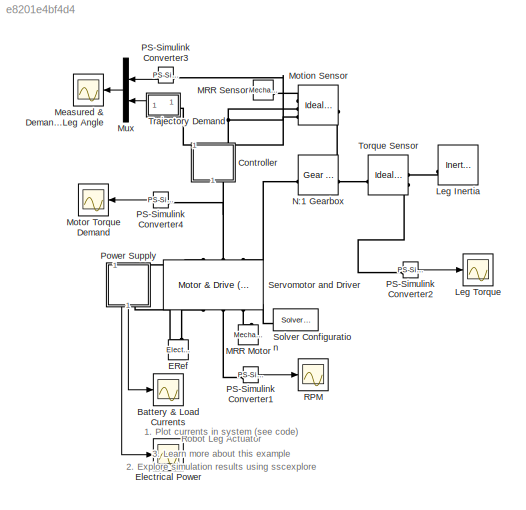
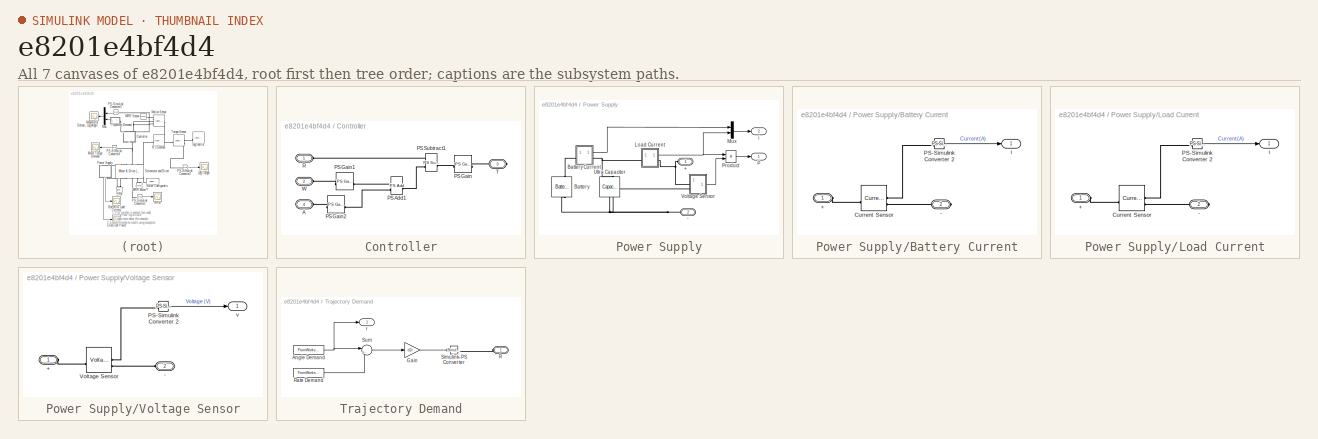
[diagram: thumbnail index - all 7 canvases of the model, root first then tree order]
MODEL slx_e8201e4bf4d4
KIND model
CONFIG EnableMultiTasking = on
CONFIG InitFcn = d2r = pi/180;\nif (~exist('T_cg'))\n  sm_robot_run_4legs_param_def_load(bdroot)\nend
CONFIG MaxStep = 1e-2
CONFIG SolverName = ode15s
CONFIG StopTime = 6*T_cg/4
BLOCK [Scope] Battery & Load Currents
  ActiveDisplayYMaximum = 1.5
  ActiveDisplayYMinimum = -1
  DataLogging = on
  DataLoggingDecimateData = on
  DataLoggingDecimation = 1
  DataLoggingSaveFormat = Structure With Time
  DataLoggingVariableName = battery
  Floating = off
  GraphicalSettings = {"GraphicalSettings":{"LegacySettings":true,"Style":{"AxesScalingProperties":{"ScaleAxesLimitsAtStop":false},"Style":{"AxesColor":"[0 0 0]","ChannelNames":[""],"ColorOrder":"[1 1 0.0666666666666667;0.0745098039215686 0.623529411764706 1;1 0.411764705882353 0.16078431372549;0.392156862745098 0.831372549019608 0.0745098039215686;0.717647058823529 0.274509803921569 1;0.0588235294117647 1 1;1 0.074509...<+399ch>  <repeated x5 — deduplicated; at blocks: Battery & Load Currents, Electrical Power, Measured & Demanded Leg Angle, Motor Torque Demand, RPM>
  MultipleDisplayCache = [{"MaxYLimMag":10,"MaxYLimReal":1.5,"MinYLimMag":0,"MinYLimReal":-1,"PlotAsMagnitudePhase":false,"ShowGrid":true,"ShowLegend":false,"Title":"%<SignalLabel>","YLabel":""}]
  NumInputPorts = 1
  WasSavedAsWebScope = on
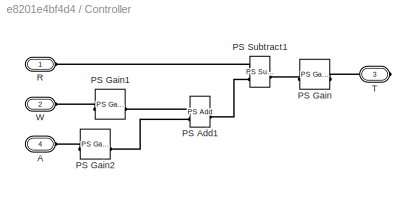
BLOCK [SubSystem] Controller
  NameLocation = left
BLOCK [PMIOPort] Controller/A
  Port = 4
  Side = Left
BLOCK [Reference] Controller/PS Add1  REF=fl_lib/Physical Signals/Functions/PS Add
  SourceBlock = fl_lib/Physical Signals/Functions/PS Add
  SourceType = PS Add
BLOCK [Reference] Controller/PS Gain  REF=fl_lib/Physical Signals/Functions/PS Gain
  SourceBlock = fl_lib/Physical Signals/Functions/PS Gain
  SourceType = PS Gain
BLOCK [Reference] Controller/PS Gain1  REF=fl_lib/Physical Signals/Functions/PS Gain
  SourceBlock = fl_lib/Physical Signals/Functions/PS Gain
  SourceType = PS Gain
BLOCK [Reference] Controller/PS Gain2  REF=fl_lib/Physical Signals/Functions/PS Gain
  SourceBlock = fl_lib/Physical Signals/Functions/PS Gain
  SourceType = PS Gain
BLOCK [Reference] Controller/PS Subtract1  REF=fl_lib/Physical Signals/Functions/PS Subtract
  SourceBlock = fl_lib/Physical Signals/Functions/PS Subtract
  SourceType = PS Subtract
BLOCK [PMIOPort] Controller/R
  Side = Left
BLOCK [PMIOPort] Controller/T
  Port = 3
  Side = Right
BLOCK [PMIOPort] Controller/W
  Port = 2
  Side = Left
BLOCK [Reference] ERef  REF=fl_lib/Electrical/Electrical Elements/Electrical Reference
  NameLocation = left
  SourceBlock = fl_lib/Electrical/Electrical Elements/Electrical Reference
  SourceType = Electrical Reference
BLOCK [Scope] Electrical Power
  ActiveDisplayYMaximum = 30
  ActiveDisplayYMinimum = -20
  DataLoggingDecimateData = on
  DataLoggingDecimation = 1
  DataLoggingSaveFormat = Structure With Time
  DataLoggingVariableName = ScopeData4
  Floating = off
  MultipleDisplayCache = [{"MaxYLimMag":10,"MaxYLimReal":30,"MinYLimMag":0,"MinYLimReal":-20,"PlotAsMagnitudePhase":false,"ShowGrid":true,"ShowLegend":false,"Title":"%<SignalLabel>","YLabel":""}]
  NumInputPorts = 1
  WasSavedAsWebScope = on
  WindowPosition = [546 541 324 237]
BLOCK [Reference] Leg Inertia  REF=fl_lib/Mechanical/Rotational Elements/Inertia
  SourceBlock = fl_lib/Mechanical/Rotational Elements/Inertia
  SourceType = Inertia
BLOCK [Scope] Leg Torque
  DataLoggingDecimateData = on
  DataLoggingDecimation = 1
  DataLoggingSaveFormat = Structure With Time
  DataLoggingVariableName = ScopeData2
  Floating = off
  GraphicalSettings = {"GraphicalSettings":{"LegacySettings":true,"Style":{"AxesScalingProperties":{"ScaleAxesLimitsAtStop":false},"Style":{"AxesColor":"[0 0 0]","ChannelNames":[""],"ColorOrder":"[1 0.909803921568627 0.392156862745098;0.149019607843137 0.549019607843137 0.866666666666667;0.96078431372549 0.466666666666667 0.16078431372549;0.286274509803922 0.858823529411765 0.250980392156863;0.752941176470588 0.3607843...<+488ch>
  NumInputPorts = 1
  TimeSpan = 1.4
  WasSavedAsWebScope = on
BLOCK [Reference] MRR Motor  REF=fl_lib/Mechanical/Rotational Elements/Mechanical
Rotational Reference
  NameLocation = right
  SourceBlock = fl_lib/Mechanical/Rotational Elements/Mechanical\nRotational Reference
  SourceType = Mechanical\nRotational Reference
BLOCK [Reference] MRR Sensor  REF=fl_lib/Mechanical/Rotational Elements/Mechanical
Rotational Reference
  SourceBlock = fl_lib/Mechanical/Rotational Elements/Mechanical\nRotational Reference
  SourceType = Mechanical\nRotational Reference
BLOCK [Scope] Measured & Demanded Leg Angle
  ActiveDisplayYMaximum = 80
  ActiveDisplayYMinimum = -20
  DataLoggingDecimateData = on
  DataLoggingDecimation = 1
  DataLoggingSaveFormat = Structure With Time
  Floating = off
  MultipleDisplayCache = [{"MaxYLimMag":10,"MaxYLimReal":80,"MinYLimMag":0,"MinYLimReal":-20,"PlotAsMagnitudePhase":false,"ShowGrid":true,"ShowLegend":false,"Title":"%<SignalLabel>","YLabel":""}]
  NumInputPorts = 1
  WasSavedAsWebScope = on
BLOCK [Reference] Motion Sensor  REF=fl_lib/Mechanical/Mechanical Sensors/Ideal Rotational
Motion Sensor
  NameLocation = top
  SourceBlock = fl_lib/Mechanical/Mechanical Sensors/Ideal Rotational\nMotion Sensor
  SourceType = Ideal Rotational\nMotion Sensor
BLOCK [Scope] Motor Torque Demand
  ActiveDisplayYMaximum = 0.1
  ActiveDisplayYMinimum = -0.1
  DataLoggingDecimateData = on
  DataLoggingDecimation = 1
  DataLoggingSaveFormat = Structure With Time
  DataLoggingVariableName = ScopeData3
  Floating = off
  MultipleDisplayCache = [{"MaxYLimMag":10,"MaxYLimReal":0.1,"MinYLimMag":0,"MinYLimReal":-0.1,"PlotAsMagnitudePhase":false,"ShowGrid":true,"ShowLegend":false,"Title":"%<SignalLabel>","YLabel":""}]
  NumInputPorts = 1
  TimeSpan = 1.4
  WasSavedAsWebScope = on
BLOCK [Mux] Mux
  DisplayOption = bar
  Inputs = 2
  NameLocation = top
BLOCK [Reference] N:1 Gearbox  REF=fl_lib/Mechanical/Mechanisms/Gear Box
  SourceBlock = fl_lib/Mechanical/Mechanisms/Gear Box
  SourceType = Gear Box
BLOCK [Reference] PS-Simulink Converter1  REF=nesl_utility/PS-Simulink
Converter
  SourceBlock = nesl_utility/PS-Simulink\nConverter
  SourceType = PS-Simulink\nConverter
BLOCK [Reference] PS-Simulink Converter2  REF=nesl_utility/PS-Simulink
Converter
  SourceBlock = nesl_utility/PS-Simulink\nConverter
  SourceType = PS-Simulink\nConverter
BLOCK [Reference] PS-Simulink Converter3  REF=nesl_utility/PS-Simulink
Converter
  NameLocation = top
  SourceBlock = nesl_utility/PS-Simulink\nConverter
  SourceType = PS-Simulink\nConverter
BLOCK [Reference] PS-Simulink Converter4  REF=nesl_utility/PS-Simulink
Converter
  NameLocation = top
  SourceBlock = nesl_utility/PS-Simulink\nConverter
  SourceType = PS-Simulink\nConverter
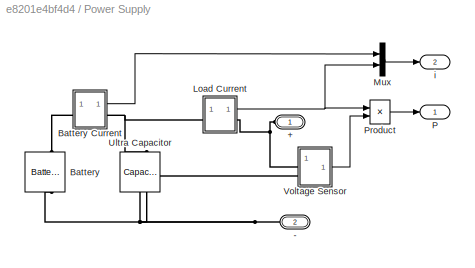
BLOCK [SubSystem] Power Supply
  NameLocation = left
BLOCK [PMIOPort] Power Supply/+
  Side = Left
BLOCK [PMIOPort] Power Supply/-
  Port = 2
  Side = Right
BLOCK [Reference] Power Supply/Battery  REF=batteryecm_lib/Battery
  NameLocation = right
  SourceBlock = batteryecm_lib/Battery
  SourceType = Battery
BLOCK [SubSystem] Power Supply/Battery Current
BLOCK [PMIOPort] Power Supply/Battery Current/+
  Side = Left
BLOCK [PMIOPort] Power Supply/Battery Current/-
  Port = 2
  Side = Right
BLOCK [Reference] Power Supply/Battery Current/Current Sensor  REF=fl_lib/Electrical/Electrical Sensors/Current Sensor
  SourceBlock = fl_lib/Electrical/Electrical Sensors/Current Sensor
  SourceType = Current Sensor
BLOCK [Reference] Power Supply/Battery Current/PS-Simulink Converter 2  REF=nesl_utility/PS-Simulink
Converter
  SourceBlock = nesl_utility/PS-Simulink\nConverter
  SourceType = PS-Simulink\nConverter
BLOCK [Outport] Power Supply/Battery Current/i
  VectorParamsAs1DForOutWhenUnconnected = off
BLOCK [SubSystem] Power Supply/Load Current
BLOCK [PMIOPort] Power Supply/Load Current/+
  Side = Left
BLOCK [PMIOPort] Power Supply/Load Current/-
  Port = 2
  Side = Right
BLOCK [Reference] Power Supply/Load Current/Current Sensor  REF=fl_lib/Electrical/Electrical Sensors/Current Sensor
  SourceBlock = fl_lib/Electrical/Electrical Sensors/Current Sensor
  SourceType = Current Sensor
BLOCK [Reference] Power Supply/Load Current/PS-Simulink Converter 2  REF=nesl_utility/PS-Simulink
Converter
  SourceBlock = nesl_utility/PS-Simulink\nConverter
  SourceType = PS-Simulink\nConverter
BLOCK [Outport] Power Supply/Load Current/i
  VectorParamsAs1DForOutWhenUnconnected = off
BLOCK [Mux] Power Supply/Mux
  DisplayOption = bar
  Inputs = 2
BLOCK [Outport] Power Supply/P
  VectorParamsAs1DForOutWhenUnconnected = off
BLOCK [Product] Power Supply/Product
  RndMeth = Zero
BLOCK [Reference] Power Supply/Ultra Capacitor  REF=fl_lib/Electrical/Electrical Elements/Capacitor
  NameLocation = right
  SourceBlock = fl_lib/Electrical/Electrical Elements/Capacitor
  SourceType = Capacitor
BLOCK [SubSystem] Power Supply/Voltage Sensor
BLOCK [PMIOPort] Power Supply/Voltage Sensor/+
  Side = Left
BLOCK [PMIOPort] Power Supply/Voltage Sensor/-
  Port = 2
  Side = Left
BLOCK [Reference] Power Supply/Voltage Sensor/PS-Simulink Converter 2  REF=nesl_utility/PS-Simulink
Converter
  SourceBlock = nesl_utility/PS-Simulink\nConverter
  SourceType = PS-Simulink\nConverter
BLOCK [Reference] Power Supply/Voltage Sensor/Voltage Sensor  REF=fl_lib/Electrical/Electrical Sensors/Voltage Sensor
  SourceBlock = fl_lib/Electrical/Electrical Sensors/Voltage Sensor
  SourceType = Voltage Sensor
BLOCK [Outport] Power Supply/Voltage Sensor/v
  VectorParamsAs1DForOutWhenUnconnected = off
BLOCK [Outport] Power Supply/i
  Port = 2
  VectorParamsAs1DForOutWhenUnconnected = off
BLOCK [Scope] RPM
  ActiveDisplayYMaximum = 4000
  ActiveDisplayYMinimum = -2000
  DataLoggingDecimateData = on
  DataLoggingDecimation = 1
  DataLoggingSaveFormat = Structure With Time
  DataLoggingVariableName = ScopeData1
  Floating = off
  MultipleDisplayCache = [{"MaxYLimMag":10,"MaxYLimReal":4000,"MinYLimMag":0,"MinYLimReal":-2000,"PlotAsMagnitudePhase":false,"ShowGrid":true,"ShowLegend":false,"Title":"%<SignalLabel>","YLabel":""}]
  NumInputPorts = 1
  WasSavedAsWebScope = on
  WindowPosition = [546 541 324 237]
BLOCK [Reference] Servomotor and Driver  REF=ee_lib/Electromechanical/Motor & Drive
(System Level)
  NameLocation = right
  SourceBlock = ee_lib/Electromechanical/Motor & Drive\n(System Level)
  SourceType = Motor & Drive\n(System Level)
BLOCK [Reference] Solver Configuration  REF=nesl_utility/Solver
Configuration
  SourceBlock = nesl_utility/Solver\nConfiguration
  SourceType = Solver\nConfiguration
BLOCK [Reference] Torque Sensor  REF=fl_lib/Mechanical/Mechanical Sensors/Ideal Torque Sensor
  SourceBlock = fl_lib/Mechanical/Mechanical Sensors/Ideal Torque Sensor
  SourceType = Ideal Torque Sensor
BLOCK [SubSystem] Trajectory Demand
BLOCK [FromWorkspace] Trajectory Demand/Angle Demand
  OutputAfterFinalValue = Holding final value
  VariableName = [t_th u_th]
  ZeroCross = off
BLOCK [Gain] Trajectory Demand/Gain
  Gain = d2r
BLOCK [PMIOPort] Trajectory Demand/R
  Side = Left
BLOCK [FromWorkspace] Trajectory Demand/Rate Demand
  OutputAfterFinalValue = Holding final value
  VariableName = [t_w u_w]
  ZeroCross = off
BLOCK [Reference] Trajectory Demand/Simulink-PS Converter  REF=nesl_utility/Simulink-PS
Converter
  SourceBlock = nesl_utility/Simulink-PS\nConverter
  SourceType = Simulink-PS\nConverter
BLOCK [Sum] Trajectory Demand/Sum
  Inputs = |++
BLOCK [Outport] Trajectory Demand/r
  VectorParamsAs1DForOutWhenUnconnected = off
ANNOTATION (root): 1. Plot currents in system ( see code ) 2. Explore simulation results using sscexplore 3. Learn more about this example
ANNOTATION (root): Robot Leg Actuator
LINE Mux:1 -> Measured & Demanded Leg Angle:1
LINE PS-Simulink Converter1:1 -> RPM:1
LINE PS-Simulink Converter2:1 -> Leg Torque:1
LINE PS-Simulink Converter3:1 -> Mux:1
LINE PS-Simulink Converter4:1 -> Motor Torque Demand:1
LINE Power Supply/Battery Current/PS-Simulink Converter 2:1 -> Power Supply/Battery Current/i:1
LINE Power Supply/Battery Current:1 -> Power Supply/Mux:1
LINE Power Supply/Load Current/PS-Simulink Converter 2:1 -> Power Supply/Load Current/i:1
NET Power Supply/Load Current:1 -> Power Supply/Mux:2, Power Supply/Product:1
LINE Power Supply/Mux:1 -> Power Supply/i:1
LINE Power Supply/Product:1 -> Power Supply/P:1
LINE Power Supply/Voltage Sensor/PS-Simulink Converter 2:1 -> Power Supply/Voltage Sensor/v:1
LINE Power Supply/Voltage Sensor:1 -> Power Supply/Product:2
LINE Power Supply:1 -> Electrical Power:1
LINE Power Supply:2 -> Battery & Load Currents:1
NET Trajectory Demand/Angle Demand:1 -> Trajectory Demand/Sum:1, Trajectory Demand/r:1
LINE Trajectory Demand/Gain:1 -> Trajectory Demand/Simulink-PS Converter:1
LINE Trajectory Demand/Rate Demand:1 -> Trajectory Demand/Sum:2
LINE Trajectory Demand/Sum:1 -> Trajectory Demand/Gain:1
LINE Trajectory Demand:1 -> Mux:2
PLINE Controller/A:RConn1 -- Controller/PS Gain2:LConn1
PLINE Controller/PS Add1:LConn1 -- Controller/PS Gain1:RConn1
PLINE Controller/PS Add1:LConn2 -- Controller/PS Gain2:RConn1
PLINE Controller/PS Add1:RConn1 -- Controller/PS Subtract1:LConn2
PLINE Controller/PS Gain1:LConn1 -- Controller/W:RConn1
PLINE Controller/PS Gain:LConn1 -- Controller/PS Subtract1:RConn1
PLINE Controller/PS Gain:RConn1 -- Controller/T:RConn1
PLINE Controller/PS Subtract1:LConn1 -- Controller/R:RConn1
PLINE Controller:LConn1 -- Trajectory Demand:LConn1
PLINE Controller:LConn2 -- Motion Sensor:RConn2
PNET net1: Controller:LConn3 -- Motion Sensor:RConn3 -- PS-Simulink Converter3:LConn1
PNET net2: Controller:RConn1 -- PS-Simulink Converter4:LConn1 -- Servomotor and Driver:LConn2
PNET net3: ERef:LConn1 -- Power Supply:RConn1 -- Servomotor and Driver:RConn1
PLINE Leg Inertia:LConn1 -- Torque Sensor:RConn1
PNET net4: MRR Motor:LConn1 -- Servomotor and Driver:RConn3 -- Solver Configuration:RConn1
PLINE MRR Sensor:LConn1 -- Motion Sensor:RConn1
PNET net5: Motion Sensor:LConn1 -- N:1 Gearbox:RConn1 -- Torque Sensor:LConn1
PLINE N:1 Gearbox:LConn1 -- Servomotor and Driver:LConn3
PLINE PS-Simulink Converter1:LConn1 -- Servomotor and Driver:RConn2
PLINE PS-Simulink Converter2:LConn1 -- Torque Sensor:RConn2
PNET net6: Power Supply/+:RConn1 -- Power Supply/Load Current:RConn1 -- Power Supply/Voltage Sensor:LConn1
PNET net7: Power Supply/-:RConn1 -- Power Supply/Battery:RConn1 -- Power Supply/Ultra Capacitor:RConn1 -- Power Supply/Voltage Sensor:LConn2
PLINE Power Supply/Battery Current/+:RConn1 -- Power Supply/Battery Current/Current Sensor:LConn1
PLINE Power Supply/Battery Current/-:RConn1 -- Power Supply/Battery Current/Current Sensor:RConn2
PLINE Power Supply/Battery Current/Current Sensor:RConn1 -- Power Supply/Battery Current/PS-Simulink Converter 2:LConn1
PLINE Power Supply/Battery Current:LConn1 -- Power Supply/Battery:LConn1
PNET net8: Power Supply/Battery Current:RConn1 -- Power Supply/Load Current:LConn1 -- Power Supply/Ultra Capacitor:LConn1
PLINE Power Supply/Load Current/+:RConn1 -- Power Supply/Load Current/Current Sensor:LConn1
PLINE Power Supply/Load Current/-:RConn1 -- Power Supply/Load Current/Current Sensor:RConn2
PLINE Power Supply/Load Current/Current Sensor:RConn1 -- Power Supply/Load Current/PS-Simulink Converter 2:LConn1
PLINE Power Supply/Voltage Sensor/+:RConn1 -- Power Supply/Voltage Sensor/Voltage Sensor:LConn1
PLINE Power Supply/Voltage Sensor/-:RConn1 -- Power Supply/Voltage Sensor/Voltage Sensor:RConn2
PLINE Power Supply/Voltage Sensor/PS-Simulink Converter 2:LConn1 -- Power Supply/Voltage Sensor/Voltage Sensor:RConn1
PLINE Power Supply:LConn1 -- Servomotor and Driver:LConn1
PLINE Trajectory Demand/R:RConn1 -- Trajectory Demand/Simulink-PS Converter:RConn1
note: NET lines group one-source signal fan-out (src -> all destinations, sorted); 1:1 wires keep LINE; PNET lines group multi-terminal physical nets as a canonical sorted terminal list (undirected conserving connections); 2-terminal nets keep the pairwise PLINE form
